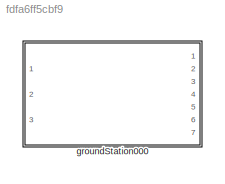
MODEL slx_fdfa6ff5cbf9
KIND library
CONFIG AbsTol = auto
CONFIG EnableMultiTasking = off
CONFIG FixedStep = auto
CONFIG MaxStep = auto
CONFIG MinStep = auto
CONFIG RelTol = 1e-3
CONFIG SampleTimeConstraint = Unconstrained
CONFIG SolverName = VariableStepAuto
CONFIG StartTime = 0.0
CONFIG StopTime = 10.0
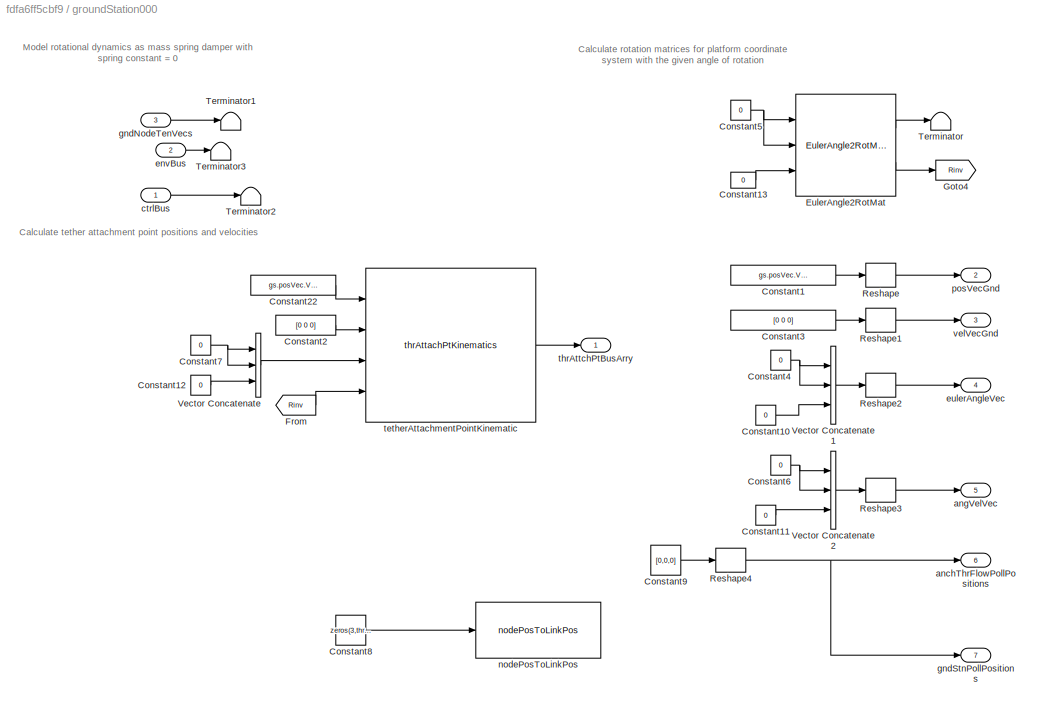
BLOCK [SubSystem] groundStation000
  Ports = [3, 7]
  RequestExecContextInheritance = off
BLOCK [Constant] groundStation000/Constant1
  Value = gs.posVec.Value
BLOCK [Constant] groundStation000/Constant10
  Value = 0
BLOCK [Constant] groundStation000/Constant11
  Value = 0
BLOCK [Constant] groundStation000/Constant12
  Value = 0
BLOCK [Constant] groundStation000/Constant13
  Value = 0
BLOCK [Constant] groundStation000/Constant2
  Value = [0 0 0]
BLOCK [Constant] groundStation000/Constant22
  Value = gs.posVec.Value
BLOCK [Constant] groundStation000/Constant3
  Value = [0 0 0]
BLOCK [Constant] groundStation000/Constant4
  Value = 0
BLOCK [Constant] groundStation000/Constant5
  Value = 0
BLOCK [Constant] groundStation000/Constant6
  Value = 0
BLOCK [Constant] groundStation000/Constant7
  Value = 0
BLOCK [Constant] groundStation000/Constant8
  Commented = on
  Value = zeros(3,thr.numNodes.Value)
BLOCK [Constant] groundStation000/Constant9
  Value = [0,0,0]
BLOCK [Reference] groundStation000/EulerAngle2RotMat  REF=eulAng2RotMat_ul/EulerAngle2RotMat
  Ports = [3, 2]
  SourceBlock = eulAng2RotMat_ul/EulerAngle2RotMat
  SourceType = SubSystem
BLOCK [From] groundStation000/From
  GotoTag = Rinv
BLOCK [Goto] groundStation000/Goto4
  GotoTag = Rinv
BLOCK [Reshape] groundStation000/Reshape
  OutputDimensionality = Column vector (2-D)
  Ports = [1, 1]
BLOCK [Reshape] groundStation000/Reshape1
  OutputDimensionality = Column vector (2-D)
  Ports = [1, 1]
BLOCK [Reshape] groundStation000/Reshape2
  OutputDimensionality = Column vector (2-D)
  Ports = [1, 1]
BLOCK [Reshape] groundStation000/Reshape3
  OutputDimensionality = Column vector (2-D)
  Ports = [1, 1]
BLOCK [Reshape] groundStation000/Reshape4
  OutputDimensionality = Column vector (2-D)
  Ports = [1, 1]
BLOCK [Terminator] groundStation000/Terminator
BLOCK [Terminator] groundStation000/Terminator1
BLOCK [Terminator] groundStation000/Terminator2
BLOCK [Terminator] groundStation000/Terminator3
BLOCK [Concatenate] groundStation000/Vector Concatenate
  NumInputs = 3
  Ports = [3, 1]
BLOCK [Concatenate] groundStation000/Vector Concatenate1
  NumInputs = 3
  Ports = [3, 1]
BLOCK [Concatenate] groundStation000/Vector Concatenate2
  NumInputs = 3
  Ports = [3, 1]
BLOCK [Outport] groundStation000/anchThrFlowPollPositions
  Port = 6
  VectorParamsAs1DForOutWhenUnconnected = off
BLOCK [Outport] groundStation000/angVelVec
  Port = 5
  VectorParamsAs1DForOutWhenUnconnected = off
BLOCK [Inport] groundStation000/ctrlBus
  OutDataTypeStr = Bus: gndStnCtrlBus
BLOCK [Inport] groundStation000/envBus
  OutDataTypeStr = Bus: envBus
  Port = 2
BLOCK [Outport] groundStation000/eulerAngleVec
  Port = 4
  VectorParamsAs1DForOutWhenUnconnected = off
BLOCK [Inport] groundStation000/gndNodeTenVecs
  Port = 3
BLOCK [Outport] groundStation000/gndStnPollPositions
  Port = 7
  VectorParamsAs1DForOutWhenUnconnected = off
BLOCK [Reference] groundStation000/nodePosToLinkPos  REF=nodePosToLinkPos_ul/nodePosToLinkPos
  Commented = on
  Ports = [1, 1]
  SourceBlock = nodePosToLinkPos_ul/nodePosToLinkPos
  SourceType = SubSystem
BLOCK [Outport] groundStation000/posVecGnd
  Port = 2
  VectorParamsAs1DForOutWhenUnconnected = off
BLOCK [Reference] groundStation000/tetherAttachmentPointKinematic  REF=thrAttachPtKinematics_ul/thrAttachPtKinematics
  Ports = [4, 1]
  SourceBlock = thrAttachPtKinematics_ul/thrAttachPtKinematics
BLOCK [Outport] groundStation000/thrAttchPtBusArry
  VectorParamsAs1DForOutWhenUnconnected = off
BLOCK [Outport] groundStation000/velVecGnd
  Port = 3
  VectorParamsAs1DForOutWhenUnconnected = off
ANNOTATION groundStation000: Calculate rotation matrices for platform coordinate system with the given angle of rotation
ANNOTATION groundStation000: Calculate tether attachment point positions and velocities
ANNOTATION groundStation000: Model rotational dynamics as mass spring damper with spring constant = 0
LINE groundStation000/Constant10:1 -> groundStation000/Vector Concatenate1:3
LINE groundStation000/Constant11:1 -> groundStation000/Vector Concatenate2:3
LINE groundStation000/Constant12:1 -> groundStation000/Vector Concatenate:3
LINE groundStation000/Constant13:1 -> groundStation000/EulerAngle2RotMat:3
LINE groundStation000/Constant1:1 -> groundStation000/Reshape:1
LINE groundStation000/Constant22:1 -> groundStation000/tetherAttachmentPointKinematic:1
LINE groundStation000/Constant2:1 -> groundStation000/tetherAttachmentPointKinematic:2
LINE groundStation000/Constant3:1 -> groundStation000/Reshape1:1
NET groundStation000/Constant4:1 -> groundStation000/Vector Concatenate1:1, groundStation000/Vector Concatenate1:2
NET groundStation000/Constant5:1 -> groundStation000/EulerAngle2RotMat:1, groundStation000/EulerAngle2RotMat:2
NET groundStation000/Constant6:1 -> groundStation000/Vector Concatenate2:1, groundStation000/Vector Concatenate2:2
NET groundStation000/Constant7:1 -> groundStation000/Vector Concatenate:1, groundStation000/Vector Concatenate:2
LINE groundStation000/Constant8:1 -> groundStation000/nodePosToLinkPos:1
LINE groundStation000/Constant9:1 -> groundStation000/Reshape4:1
LINE groundStation000/EulerAngle2RotMat:1 -> groundStation000/Terminator:1
LINE groundStation000/EulerAngle2RotMat:2 -> groundStation000/Goto4:1
LINE groundStation000/From:1 -> groundStation000/tetherAttachmentPointKinematic:4
LINE groundStation000/Reshape1:1 -> groundStation000/velVecGnd:1
LINE groundStation000/Reshape2:1 -> groundStation000/eulerAngleVec:1
LINE groundStation000/Reshape3:1 -> groundStation000/angVelVec:1
NET groundStation000/Reshape4:1 -> groundStation000/anchThrFlowPollPositions:1, groundStation000/gndStnPollPositions:1
LINE groundStation000/Reshape:1 -> groundStation000/posVecGnd:1
LINE groundStation000/Vector Concatenate1:1 -> groundStation000/Reshape2:1
LINE groundStation000/Vector Concatenate2:1 -> groundStation000/Reshape3:1
LINE groundStation000/Vector Concatenate:1 -> groundStation000/tetherAttachmentPointKinematic:3
LINE groundStation000/ctrlBus:1 -> groundStation000/Terminator2:1
LINE groundStation000/envBus:1 -> groundStation000/Terminator3:1
LINE groundStation000/gndNodeTenVecs:1 -> groundStation000/Terminator1:1
LINE groundStation000/tetherAttachmentPointKinematic:1 -> groundStation000/thrAttchPtBusArry:1
note: NET lines group one-source signal fan-out (src -> all destinations, sorted); 1:1 wires keep LINE
